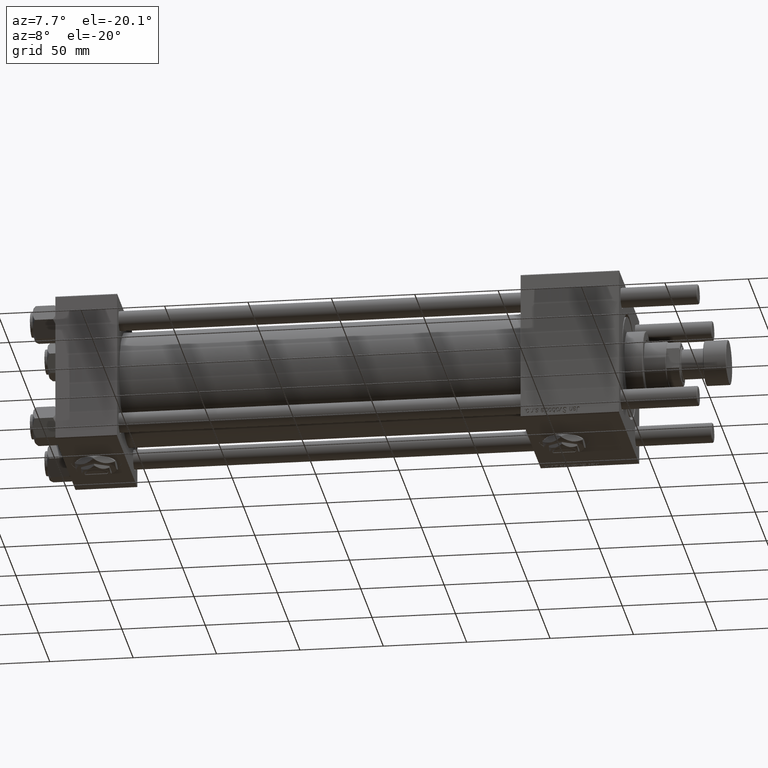
[diagram: clean part render]
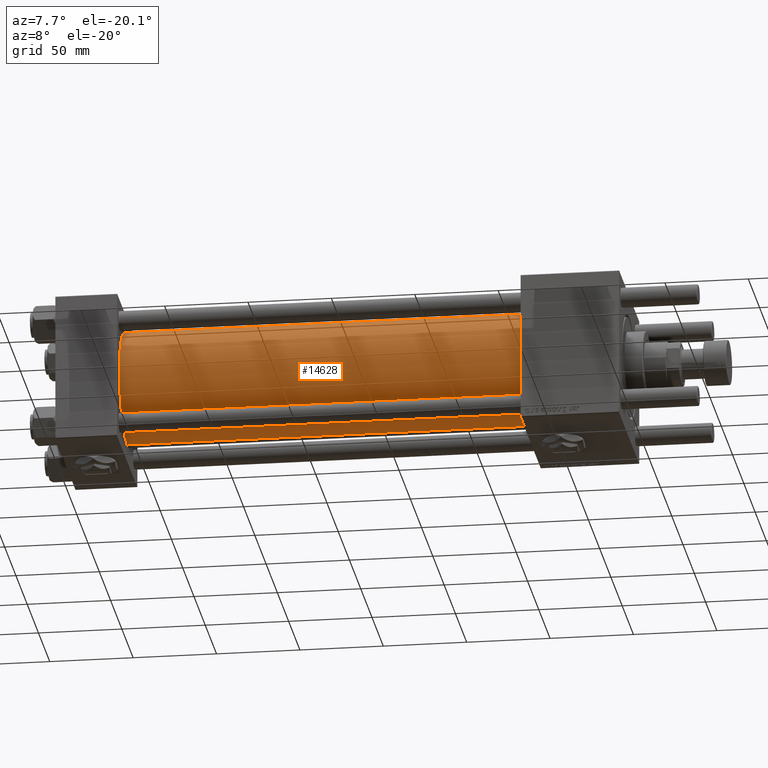
[diagram: same view with one face highlighted and labeled with its STEP entity id]
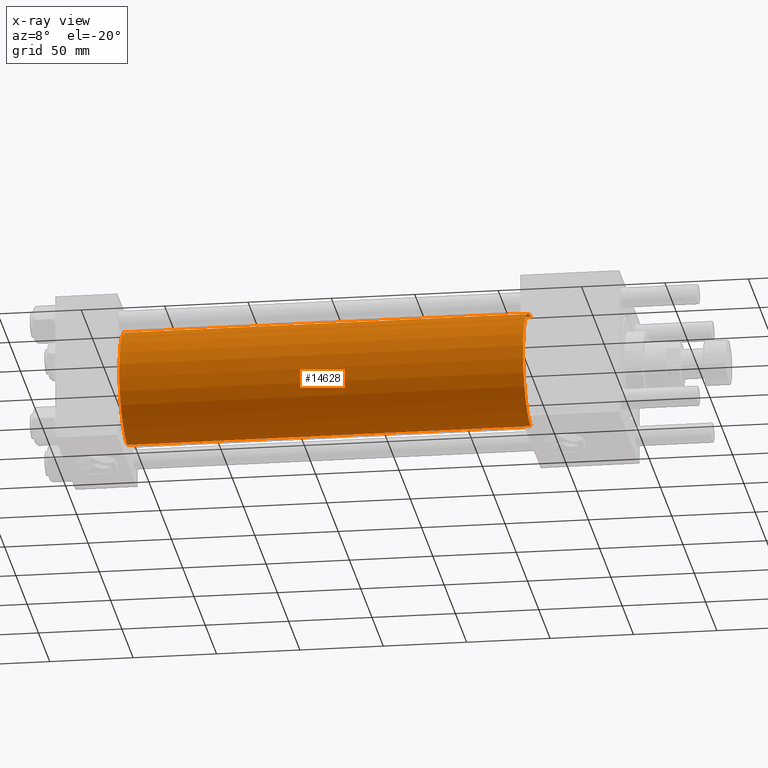
[diagram: x-ray of the same camera — body ghosted, the highlighted face saturated]
A machine part, auxiliary view. The second image highlights one B-rep face of the part: STEP entity #14628.
The next image is the same camera in x-ray: the body ghosted, the highlighted face saturated — about 0% of this face is hidden behind the body in this view.
In plain terms, the highlighted cylindrical surface (partial cylindrical patch) has radius 34.5 mm, axis along (-1, -0, -0).
Its self-contained STEP definition (entity closure, byte-faithful):
#912 = DIRECTION ( 'NONE',  ( 1.000000000000000000, -0.000000000000000000, 0.000000000000000000 ) ) ;
#3289 = AXIS2_PLACEMENT_3D ( 'NONE', #56935, #912, #32997 ) ;
#6428 = VECTOR ( 'NONE', #28220, 1000.000000000000000 ) ;
#7393 = CARTESIAN_POINT ( 'NONE',  ( 278.9999999999999432, 1.622946243093158675E-15, -34.50000000000000000 ) ) ;
#9784 = LINE ( 'NONE', #51131, #27751 ) ;
#12838 = AXIS2_PLACEMENT_3D ( 'NONE', #21691, #26790, #53757 ) ;
#13844 = ORIENTED_EDGE ( 'NONE', *, *, #42497, .T. ) ;
#14628 = ADVANCED_FACE ( 'NONE', ( #44479 ), #45072, .T. ) ;
#16561 = EDGE_CURVE ( 'NONE', #30936, #57090, #9784, .T. ) ;
#16872 = DIRECTION ( 'NONE',  ( 0.000000000000000000, 0.000000000000000000, -1.000000000000000000 ) ) ;
#18576 = VERTEX_POINT ( 'NONE', #50857 ) ;
#20774 = CARTESIAN_POINT ( 'NONE',  ( 278.9999999999999432, -2.602085213965210642E-15, 0.000000000000000000 ) ) ;
#21691 = CARTESIAN_POINT ( 'NONE',  ( 278.9999999999999432, -2.602085213965210642E-15, 0.000000000000000000 ) ) ;
#22487 = ORIENTED_EDGE ( 'NONE', *, *, #33928, .F. ) ;
#25306 = VERTEX_POINT ( 'NONE', #34480 ) ;
#26790 = DIRECTION ( 'NONE',  ( -1.000000000000000000, -0.000000000000000000, -0.000000000000000000 ) ) ;
#27751 = VECTOR ( 'NONE', #28062, 1000.000000000000000 ) ;
#28062 = DIRECTION ( 'NONE',  ( -1.000000000000000000, -0.000000000000000000, -0.000000000000000000 ) ) ;
#28220 = DIRECTION ( 'NONE',  ( -1.000000000000000000, -0.000000000000000000, -0.000000000000000000 ) ) ;
#28800 = CARTESIAN_POINT ( 'NONE',  ( 278.9999999999999432, -2.602085213965210642E-15, 34.50000000000000000 ) ) ;
#29139 = CIRCLE ( 'NONE', #3289, 34.50000000000000000 ) ;
#29748 = ORIENTED_EDGE ( 'NONE', *, *, #34678, .T. ) ;
#30936 = VERTEX_POINT ( 'NONE', #7393 ) ;
#32997 = DIRECTION ( 'NONE',  ( 0.000000000000000000, 0.000000000000000000, 1.000000000000000000 ) ) ;
#33928 = EDGE_CURVE ( 'NONE', #18576, #30936, #54045, .T. ) ;
#34480 = CARTESIAN_POINT ( 'NONE',  ( 37.00000000000000711, -2.602085213965210642E-15, 34.50000000000000000 ) ) ;
#34678 = EDGE_CURVE ( 'NONE', #25306, #57090, #29139, .T. ) ;
#36706 = CARTESIAN_POINT ( 'NONE',  ( 37.00000000000000711, 1.622946243093158675E-15, -34.50000000000000000 ) ) ;
#36819 = AXIS2_PLACEMENT_3D ( 'NONE', #20774, #53720, #16872 ) ;
#37227 = LINE ( 'NONE', #28800, #6428 ) ;
#41256 = EDGE_LOOP ( 'NONE', ( #48293, #22487, #13844, #29748 ) ) ;
#42497 = EDGE_CURVE ( 'NONE', #18576, #25306, #37227, .T. ) ;
#44479 = FACE_OUTER_BOUND ( 'NONE', #41256, .T. ) ;
#45072 = CYLINDRICAL_SURFACE ( 'NONE', #12838, 34.50000000000000000 ) ;
#48293 = ORIENTED_EDGE ( 'NONE', *, *, #16561, .F. ) ;
#50857 = CARTESIAN_POINT ( 'NONE',  ( 278.9999999999999432, -2.602085213965210642E-15, 34.50000000000000000 ) ) ;
#51131 = CARTESIAN_POINT ( 'NONE',  ( 278.9999999999999432, 1.622946243093158675E-15, -34.50000000000000000 ) ) ;
#53720 = DIRECTION ( 'NONE',  ( 1.000000000000000000, 0.000000000000000000, 0.000000000000000000 ) ) ;
#53757 = DIRECTION ( 'NONE',  ( 0.000000000000000000, 0.000000000000000000, 1.000000000000000000 ) ) ;
#54045 = CIRCLE ( 'NONE', #36819, 34.50000000000000000 ) ;
#56935 = CARTESIAN_POINT ( 'NONE',  ( 37.00000000000000711, -2.602085213965210642E-15, 0.000000000000000000 ) ) ;
#57090 = VERTEX_POINT ( 'NONE', #36706 ) ;